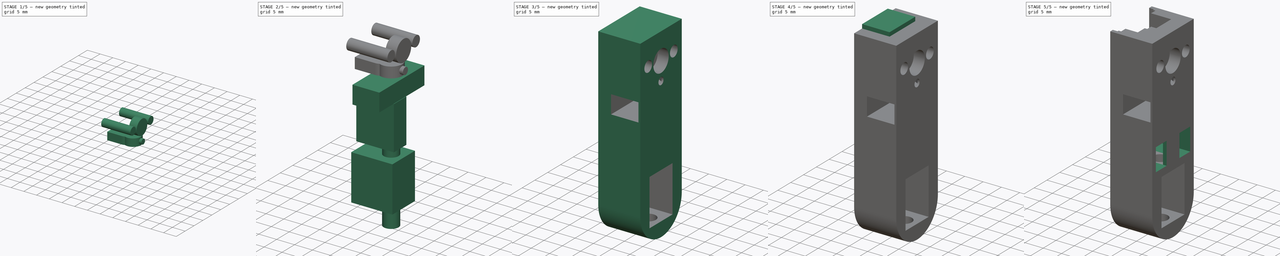
[diagram: build sequence overview — one tinted view per stage of 5, left to right]
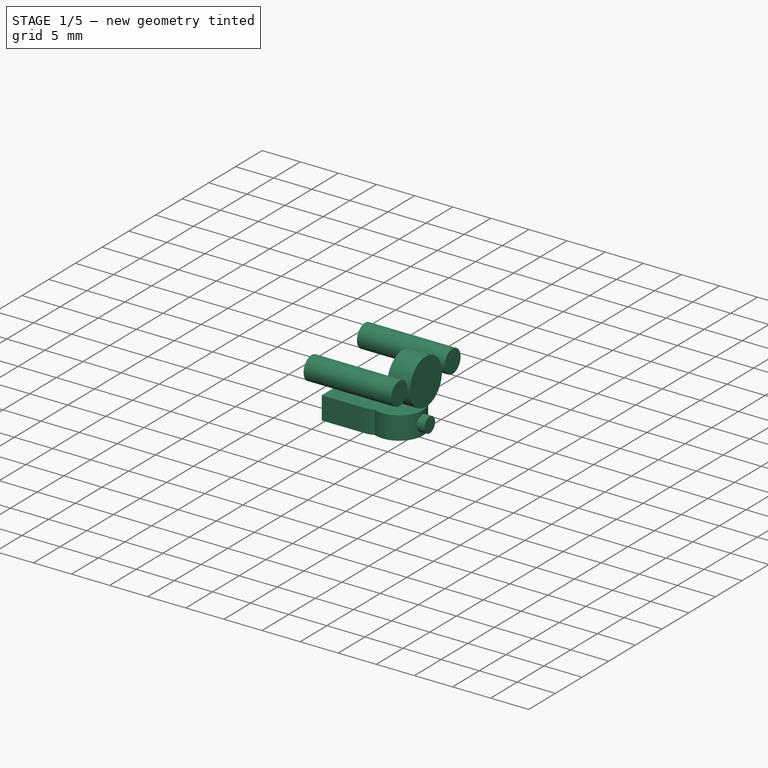
[diagram: stage 1 of 5 — iso view after this stage's code; geometry added in this stage tinted green]
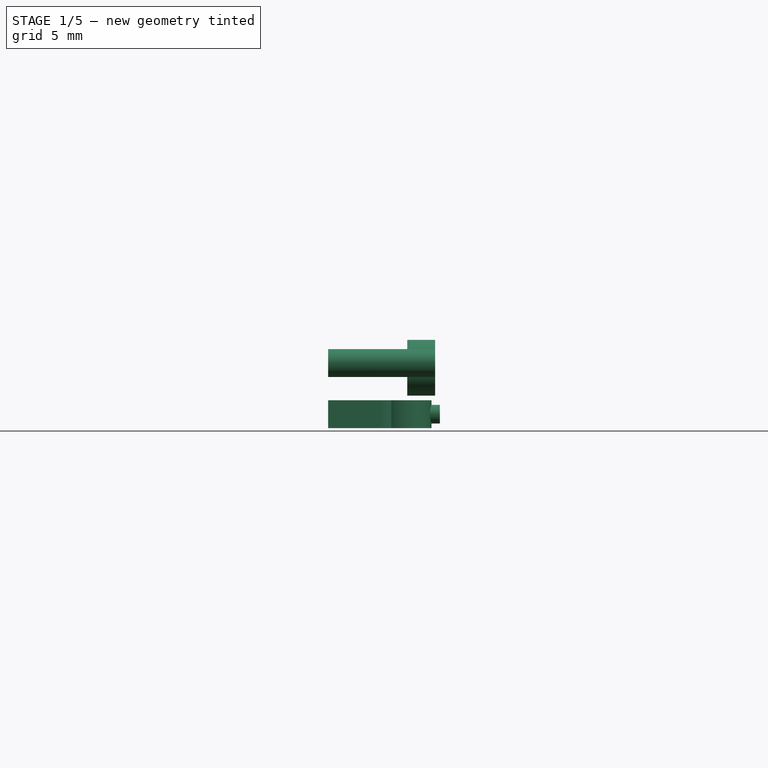
[diagram: stage 1 of 5 — front view after this stage's code; geometry added in this stage tinted green]
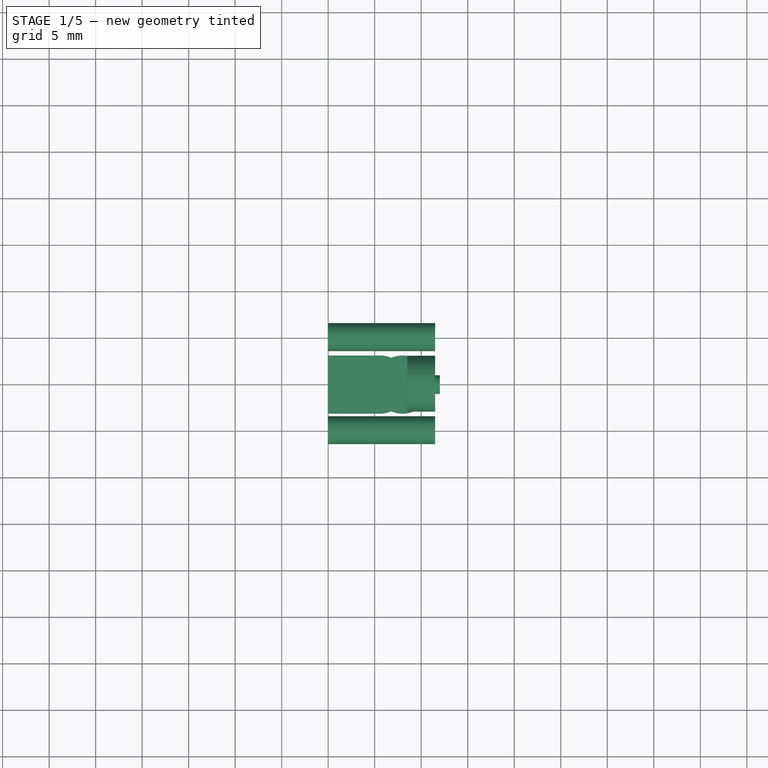
[diagram: stage 1 of 5 — top view after this stage's code; geometry added in this stage tinted green]
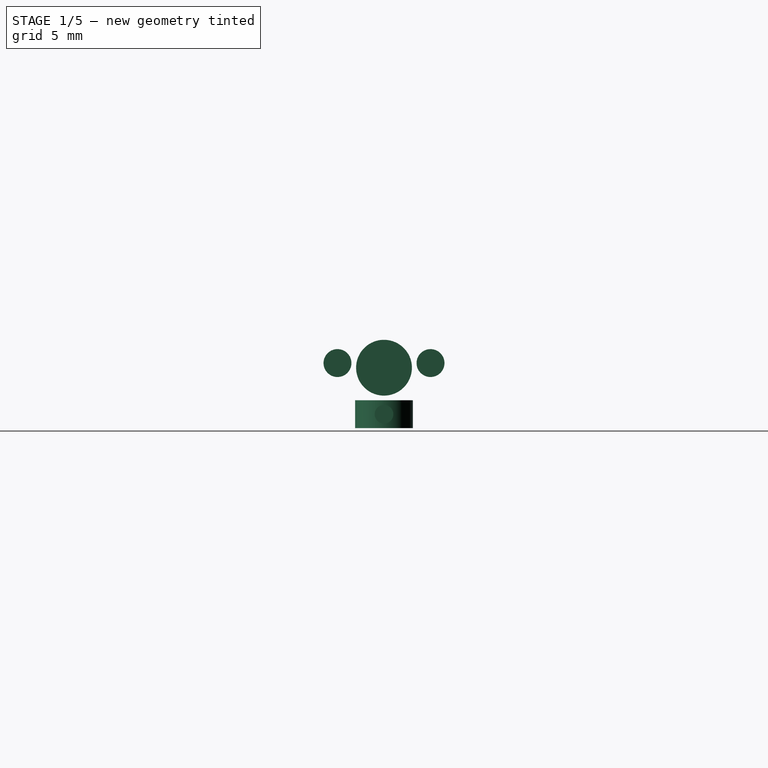
[diagram: stage 1 of 5 — right view after this stage's code; geometry added in this stage tinted green]
FCSTD DOCUMENT  (FreeCAD 0.18R15215 (Git))
Label: JackyTouch
License: All rights reserved
LicenseURL: http://en.wikipedia.org/wiki/All_rights_reserved
objects: Sketcher::SketchObject×15, Part::Extrusion×15, Part::MultiFuse×2, Part::Cut×2, Part::Mirroring×1
note: 35 computed .brp shape members not serialized (recipe doc carries the construction recipe); baked Part::Feature solids carry a one-line shape summary decoded from their .brp

FEATURE [Sketcher::SketchObject] Sketch013
  sketch-geometry (6):
    g0: ArcOfCircle CenterX=8 CenterY=0 CenterZ=0 NormalX=0 NormalY=0 NormalZ=1 AngleXU=0 Radius=3.1 StartAngle=4.30803 EndAngle=8.25834
    g1: ArcOfCircle CenterX=5.56074 CenterY=0 CenterZ=0 NormalX=0 NormalY=0 NormalZ=1 AngleXU=0 Radius=3.1 StartAngle=1.16644 EndAngle=1.5708
    g2: ArcOfCircle CenterX=5.56074 CenterY=0 CenterZ=0 NormalX=0 NormalY=0 NormalZ=1 AngleXU=0 Radius=3.1 StartAngle=4.71239 EndAngle=5.11675
    g3: LineSegment StartX=5.56074 StartY=3.1 StartZ=0 EndX=0 EndY=3.1 EndZ=0
    g4: LineSegment StartX=5.56074 StartY=-3.1 StartZ=0 EndX=0 EndY=-3.1 EndZ=0
    g5: LineSegment StartX=0 StartY=-3.1 StartZ=0 EndX=0 EndY=3.1 EndZ=0
  constraints (17):
    c: PointOnObject(g0,g-1)
    c: DistanceX(g-1,g0) = 8
    c: Radius(g0) = 3.1
    c: PointOnObject(g1,g-1)
    c: Coincident(g1,g0)
    c: Coincident(g2,g1)
    c: Coincident(g2,g0)
    c: Radius(g1) = 3.1
    c: Horizontal(g3)
    c: Horizontal(g4)
    c: Coincident(g5,g4)
    c: Coincident(g5,g3)
    c: Tangent(g4,g2) = 1.5708
    c: Tangent(g3,g1) = -1.5708
    c: Symmetric(g4,g3,g-1)
    c: DistanceX(g-1,g4) = 0
    c: DistanceY(g0,g0) = 5.7
FEATURE [Part::Extrusion] Extrude015  label="LogementAimantRappel"
  Base = -> Sketch013
  Dir = (0,0,1)
  DirMode = 2
  FaceMakerClass = Part::FaceMakerBullseye
  LengthFwd = 3
  LengthRev = 0
  Placement = pos=(0,0,18.5) rot=(0,0,1;0rad)
  Solid = true
  Symmetric = false
FEATURE [Sketcher::SketchObject] Sketch014
  Placement = pos=(0,0,0) rot=(0.57735,0.57735,0.57735;2.0944rad)
  sketch-geometry (1):
    g0: Circle CenterX=0 CenterY=0 CenterZ=0 NormalX=0 NormalY=0 NormalZ=1 AngleXU=0 Radius=1
  constraints (2):
    c: Coincident(g0,g-1)
    c: Radius(g0) = 1
FEATURE [Part::Extrusion] Extrude016  label="ExtractAimant"
  Base = -> Sketch014
  Dir = (1,0,0)
  DirMode = 2
  FaceMakerClass = Part::FaceMakerBullseye
  LengthFwd = 12
  LengthRev = 0
  Placement = pos=(0,0,20) rot=(0,0,1;0rad)
  Solid = true
  Symmetric = false
FEATURE [Sketcher::SketchObject] Sketch015
  Placement = pos=(0,0,0) rot=(0.57735,0.57735,0.57735;2.0944rad)
  sketch-geometry (2):
    g0: Circle CenterX=-5 CenterY=25.5 CenterZ=0 NormalX=0 NormalY=0 NormalZ=1 AngleXU=0 Radius=1.5
    g1: Circle CenterX=5 CenterY=25.5 CenterZ=0 NormalX=0 NormalY=0 NormalZ=1 AngleXU=0 Radius=1.5
  constraints (5):
    c: Symmetric(g0,g1,g-2)
    c: DistanceY(g-1,g1) = 25.5
    c: DistanceX(g0,g1) = 10
    c: Radius(g1) = 1.5
    c: Equal(g1,g0)
FEATURE [Part::Extrusion] Extrude017  label="DégagementLeds"
  Base = -> Sketch015
  Dir = (1,0,0)
  DirMode = 2
  FaceMakerClass = Part::FaceMakerBullseye
  LengthFwd = 11.5
  LengthRev = 0
  Solid = true
  Symmetric = false
FEATURE [Sketcher::SketchObject] Sketch016
  ExternalGeometry = -> [Sketch001]
  Placement = pos=(0,0,0) rot=(0.57735,0.57735,0.57735;2.0944rad)
  sketch-geometry (1):
    g0: Circle CenterX=0 CenterY=25 CenterZ=0 NormalX=0 NormalY=0 NormalZ=1 AngleXU=0 Radius=3
  constraints (2):
    c: Radius(g0) = 3
    c: Coincident(g0,g-3)
FEATURE [Part::Extrusion] Extrude018  label="TêteVis"
  Base = -> Sketch016
  Dir = (1,0,0)
  DirMode = 2
  FaceMakerClass = Part::FaceMakerBullseye
  LengthFwd = 3
  LengthRev = 0
  Placement = pos=(8.5,0,0) rot=(0,0,1;0rad)
  Solid = true
  Symmetric = false
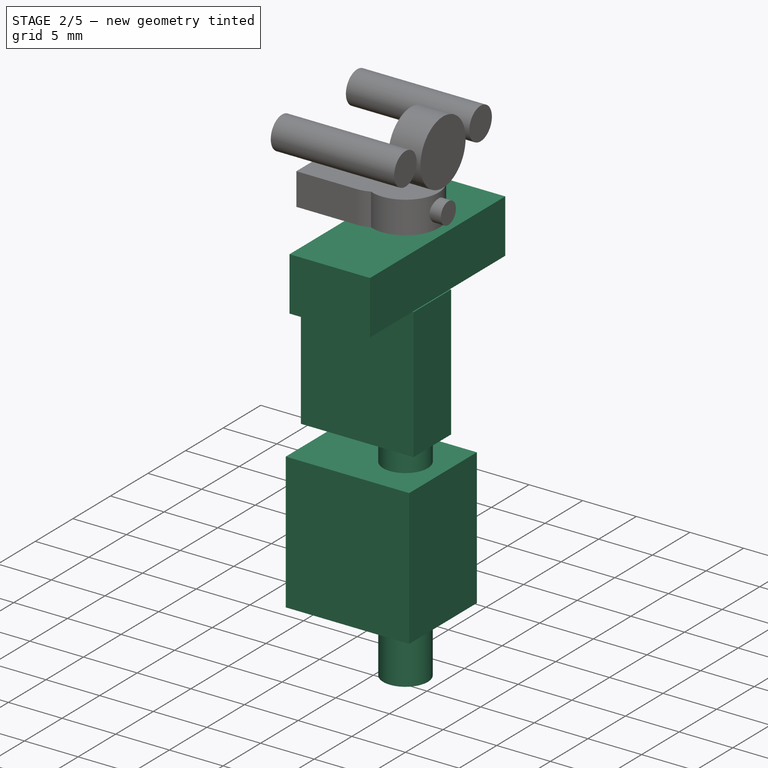
[diagram: stage 2 of 5 — iso view after this stage's code; geometry added in this stage tinted green]
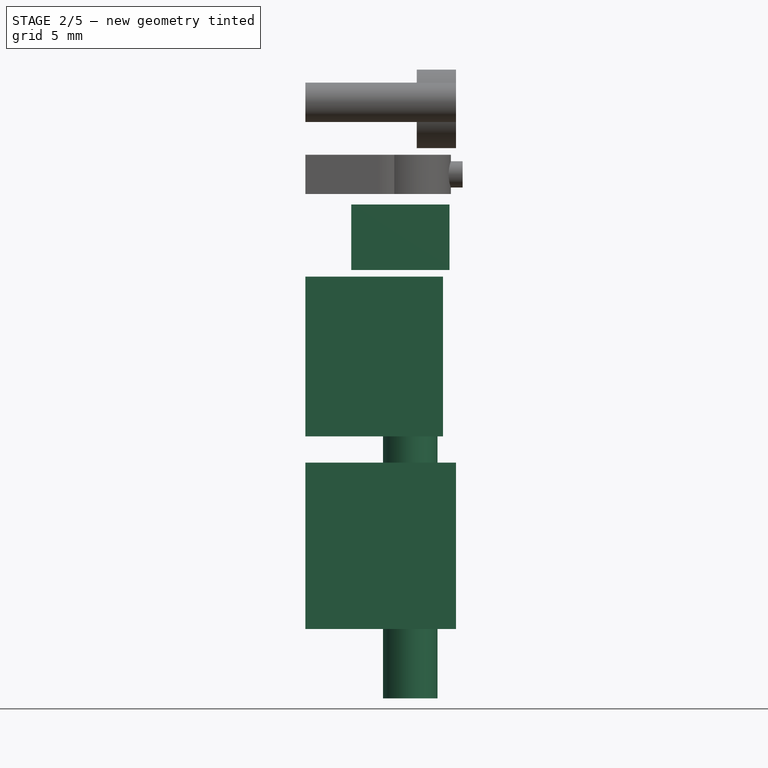
[diagram: stage 2 of 5 — front view after this stage's code; geometry added in this stage tinted green]
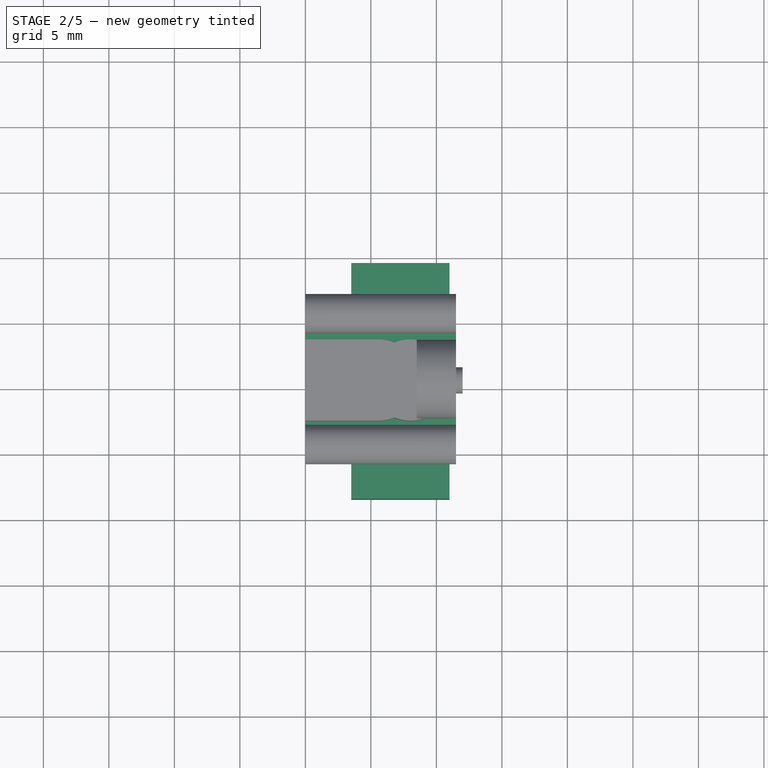
[diagram: stage 2 of 5 — top view after this stage's code; geometry added in this stage tinted green]
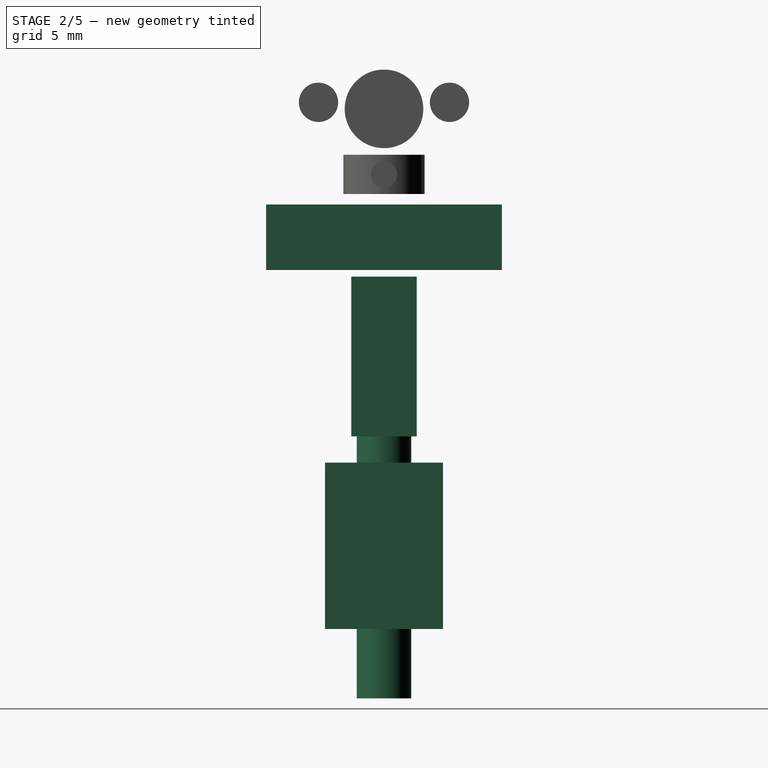
[diagram: stage 2 of 5 — right view after this stage's code; geometry added in this stage tinted green]
FEATURE [Part::Extrusion] Extrude011  label="DégagementAxe"
  Base = -> Sketch002
  Dir = (1,0,0)
  DirMode = 2
  FaceMakerClass = Part::FaceMakerBullseye
  LengthFwd = 10.5
  LengthRev = 0
  Solid = true
  Symmetric = false
FEATURE [Sketcher::SketchObject] Sketch011
  sketch-geometry (1):
    g0: Circle CenterX=8 CenterY=0 CenterZ=0 NormalX=0 NormalY=0 NormalZ=1 AngleXU=0 Radius=2.08
  constraints (3):
    c: PointOnObject(g0,g-1)
    c: Radius(g0) = 2.08
    c: DistanceX(g-1,g0) = 8
FEATURE [Part::Extrusion] Extrude012  label="PercageAxe"
  Base = -> Sketch011
  Dir = (0,0,1)
  DirMode = 2
  FaceMakerClass = Part::FaceMakerBullseye
  LengthFwd = 20
  LengthRev = 0
  Reversed = true
  Solid = true
  Symmetric = false
FEATURE [Part::Extrusion] Extrude013  label="DégagementGachette"
  Base = -> Sketch009
  Dir = (1,0,0)
  DirMode = 2
  FaceMakerClass = Part::FaceMakerBullseye
  LengthFwd = 7.5
  LengthRev = 0
  Placement = pos=(3.5,0,0) rot=(0,0,1;0rad)
  Solid = true
  Symmetric = false
FEATURE [Sketcher::SketchObject] Sketch012
  ExternalGeometry = -> [Sketch002]
  Placement = pos=(0,0,0) rot=(0.57735,0.57735,0.57735;2.0944rad)
  sketch-geometry (9):
    g0: LineSegment [constr] StartX=-5 StartY=-1 StartZ=0 EndX=5 EndY=-1 EndZ=0
    g1: LineSegment [constr] StartX=-2.5 StartY=-12.2 StartZ=0 EndX=2.5 EndY=-12.2 EndZ=0
    g2: LineSegment [constr] StartX=-2.5 StartY=-2 StartZ=0 EndX=2.5 EndY=-2 EndZ=0
    g3: LineSegment [constr] StartX=-2.5 StartY=-2 StartZ=0 EndX=-2.5 EndY=-12.2 EndZ=0
    g4: LineSegment [constr] StartX=2.5 StartY=-2 StartZ=0 EndX=2.5 EndY=-12.2 EndZ=0
    g5: LineSegment StartX=-4.5 StartY=-14.7 StartZ=0 EndX=4.5 EndY=-14.7 EndZ=0
    g6: LineSegment StartX=4.5 StartY=-14.7 StartZ=0 EndX=4.5 EndY=-2 EndZ=0
    g7: LineSegment StartX=4.5 StartY=-2 StartZ=0 EndX=-4.5 EndY=-2 EndZ=0
    g8: LineSegment StartX=-4.5 StartY=-2 StartZ=0 EndX=-4.5 EndY=-14.7 EndZ=0
  constraints (24):
    c: DistanceY(g0,g-1) = 1
    c: Symmetric(g0,g0,g-2)
    c: DistanceX(g0,g0) = 10
    c: Horizontal(g1)
    c: Symmetric(g-3,g1,g-1)
    c: Horizontal(g2)
    c: Symmetric(g-4,g2,g0)
    c: Coincident(g3,g2)
    c: Coincident(g3,g1)
    c: Coincident(g4,g2)
    c: Coincident(g4,g1)
    c: Vertical(g4)
    c: Vertical(g3)
    c: Coincident(g5,g6)
    c: Coincident(g6,g7)
    c: Coincident(g7,g8)
    c: Coincident(g8,g5)
    c: Horizontal(g5)
    c: Vertical(g6)
    c: Vertical(g8)
    c: PointOnObject(g2,g7)
    c: DistanceY(g5,g1) = 2.5
    c: Symmetric(g6,g7,g-2)
    c: DistanceX(g1,g5) = 2
FEATURE [Part::Extrusion] Extrude014  label="DégagementCirclip"
  Base = -> Sketch012
  Dir = (1,0,0)
  DirMode = 2
  FaceMakerClass = Part::FaceMakerBullseye
  LengthFwd = 11.5
  LengthRev = 0
  Solid = true
  Symmetric = false
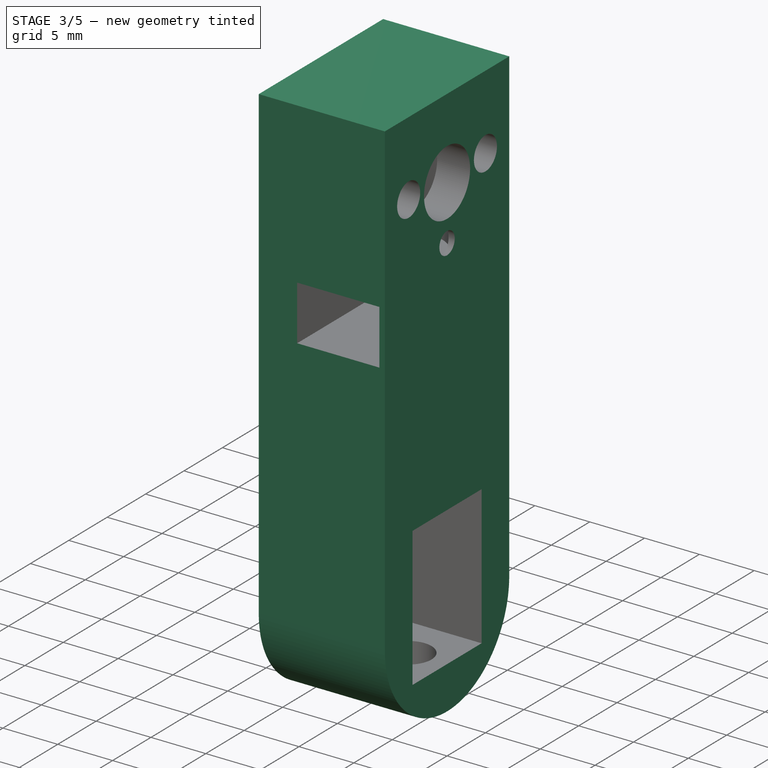
[diagram: stage 3 of 5 — iso view after this stage's code; geometry added in this stage tinted green]
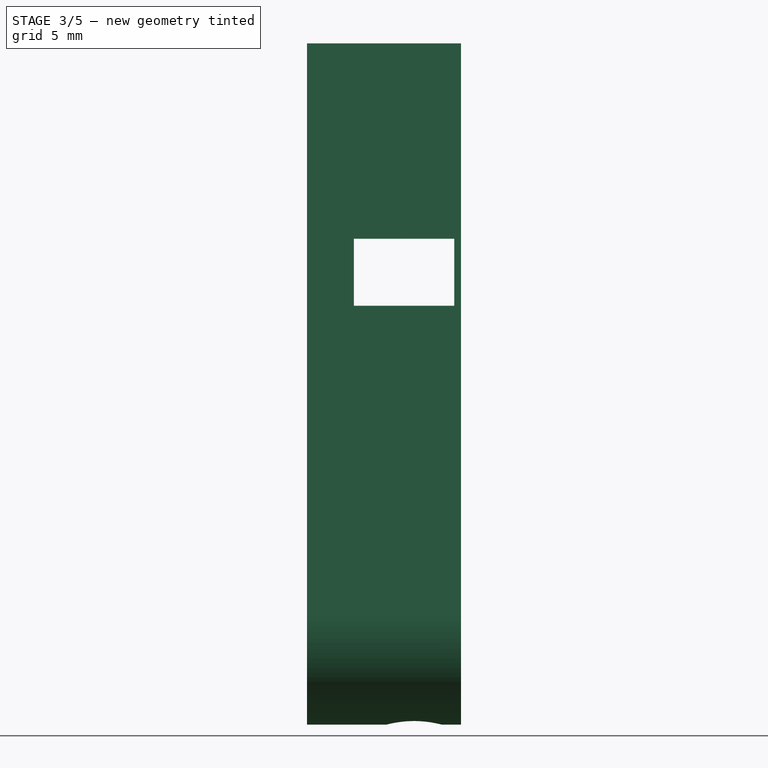
[diagram: stage 3 of 5 — front view after this stage's code; geometry added in this stage tinted green]
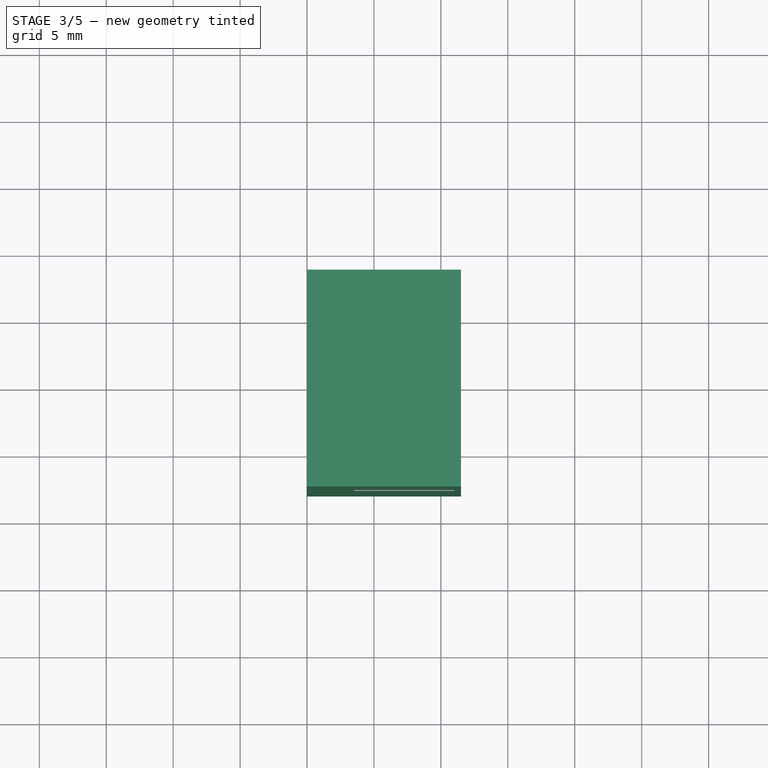
[diagram: stage 3 of 5 — top view after this stage's code; geometry added in this stage tinted green]
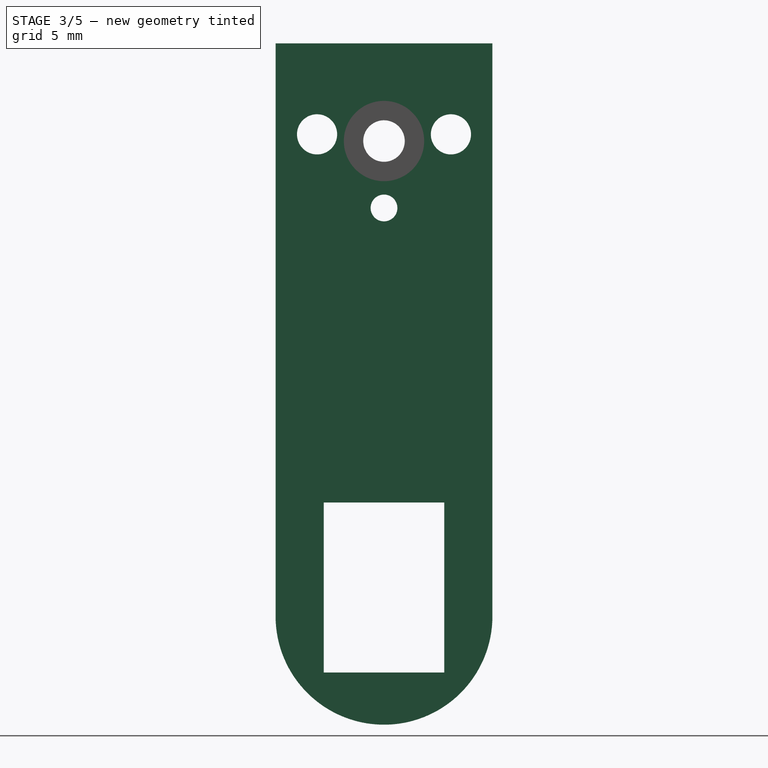
[diagram: stage 3 of 5 — right view after this stage's code; geometry added in this stage tinted green]
FEATURE [Sketcher::SketchObject] Sketch006
  ExternalGeometry = -> [Sketch001,Sketch]
  Placement = pos=(0,0,0) rot=(0.57735,0.57735,0.57735;2.0944rad)
  sketch-geometry (5):
    g0: LineSegment StartX=-8.1 StartY=32.3 StartZ=0 EndX=8.1 EndY=32.3 EndZ=0
    g1: ArcOfCircle CenterX=0 CenterY=-10.5 CenterZ=0 NormalX=0 NormalY=0 NormalZ=1 AngleXU=0 Radius=8.1 StartAngle=3.14159 EndAngle=6.28319
    g2: LineSegment [constr] StartX=20 StartY=0 StartZ=0 EndX=20 EndY=-12.2 EndZ=0
    g3: LineSegment StartX=8.1 StartY=-10.5 StartZ=0 EndX=8.1 EndY=32.3 EndZ=0
    g4: LineSegment StartX=-8.1 StartY=32.3 StartZ=0 EndX=-8.1 EndY=-10.5 EndZ=0
  constraints (15):
    c: DistanceX(g-3,g0) = 1
    c: Horizontal(g0)
    c: PointOnObject(g-3,g0)
    c: PointOnObject(g1,g-2)
    c: PointOnObject(g2,g-1)
    c: Vertical(g2)
    c: DistanceY(g2,g2) = 12.2
    c: DistanceX(g2) = 20
    c: Coincident(g3,g0)
    c: Vertical(g3)
    c: DistanceY(g1,g-1) = 10.5
    c: Tangent(g3,g1) = -1.5708
    c: Coincident(g4,g0)
    c: Vertical(g4)
    c: Tangent(g4,g1) = -1.5708
FEATURE [Part::Extrusion] Extrude006  label="Body"
  Base = -> Sketch006
  Dir = (1,0,0)
  DirMode = 2
  FaceMakerClass = Part::FaceMakerBullseye
  LengthFwd = 11.5
  LengthRev = 0
  Solid = true
  Symmetric = false
FEATURE [Sketcher::SketchObject] Sketch009
  ExternalGeometry = -> [Sketch002]
  Placement = pos=(0,0,0) rot=(0.57735,0.57735,0.57735;2.0944rad)
  sketch-geometry (8):
    g0: LineSegment [constr] StartX=-3 StartY=15.7 StartZ=0 EndX=3 EndY=15.7 EndZ=0
    g1: LineSegment [constr] StartX=3 StartY=15.7 StartZ=0 EndX=3 EndY=12.7 EndZ=0
    g2: LineSegment [constr] StartX=3 StartY=12.7 StartZ=0 EndX=-3 EndY=12.7 EndZ=0
    g3: LineSegment [constr] StartX=-3 StartY=12.7 StartZ=0 EndX=-3 EndY=15.7 EndZ=0
    g4: LineSegment StartX=-9 StartY=17.7 StartZ=0 EndX=9 EndY=17.7 EndZ=0
    g5: LineSegment StartX=9 StartY=17.7 StartZ=0 EndX=9 EndY=12.7 EndZ=0
    g6: LineSegment StartX=9 StartY=12.7 StartZ=0 EndX=-9 EndY=12.7 EndZ=0
    g7: LineSegment StartX=-9 StartY=12.7 StartZ=0 EndX=-9 EndY=17.7 EndZ=0
  constraints (22):
    c: DistanceX(g2,g2) = 6
    c: DistanceY(g3,g3) = 3
    c: Coincident(g4,g5)
    c: Coincident(g5,g6)
    c: Coincident(g6,g7)
    c: Coincident(g7,g4)
    c: Horizontal(g6)
    c: Vertical(g5)
    c: Vertical(g7)
    c: Symmetric(g4,g4,g-2)
    c: DistanceX(g4,g4) = 18
    c: DistanceY(g-3,g5) = 0.5
    c: Coincident(g2,g1)
    c: Coincident(g3,g2)
    c: Horizontal(g0)
    c: Vertical(g1)
    c: Vertical(g3)
    c: Coincident(g3,g0)
    c: Coincident(g1,g0)
    c: Symmetric(g1,g2,g-2)
    c: DistanceY(g5,g1) = 0
    c: DistanceY(g0,g4) = 2
FEATURE [Sketcher::SketchObject] Sketch010
  ExternalGeometry = -> [Sketch001]
  Placement = pos=(0,0,0) rot=(0.57735,0.57735,0.57735;2.0944rad)
  sketch-geometry (1):
    g0: Circle CenterX=0 CenterY=25 CenterZ=0 NormalX=0 NormalY=0 NormalZ=1 AngleXU=0 Radius=1.55
  constraints (2):
    c: Coincident(g0,g-3)
    c: Radius(g0) = 1.55
FEATURE [Part::Extrusion] Extrude010  label="AxeFixation"
  Base = -> Sketch010
  Dir = (1,0,0)
  DirMode = 2
  FaceMakerClass = Part::FaceMakerBullseye
  LengthFwd = 12
  LengthRev = 0
  Solid = true
  Symmetric = false
FEATURE [Part::MultiFuse] Fusion002
  Shapes = -> [Extrude010,Extrude013,Extrude014,Extrude012,Extrude011,Extrude015,Extrude016,Extrude017,Extrude018]
FEATURE [Part::Cut] Cut
  Base = -> Extrude006
  Tool = -> Fusion002
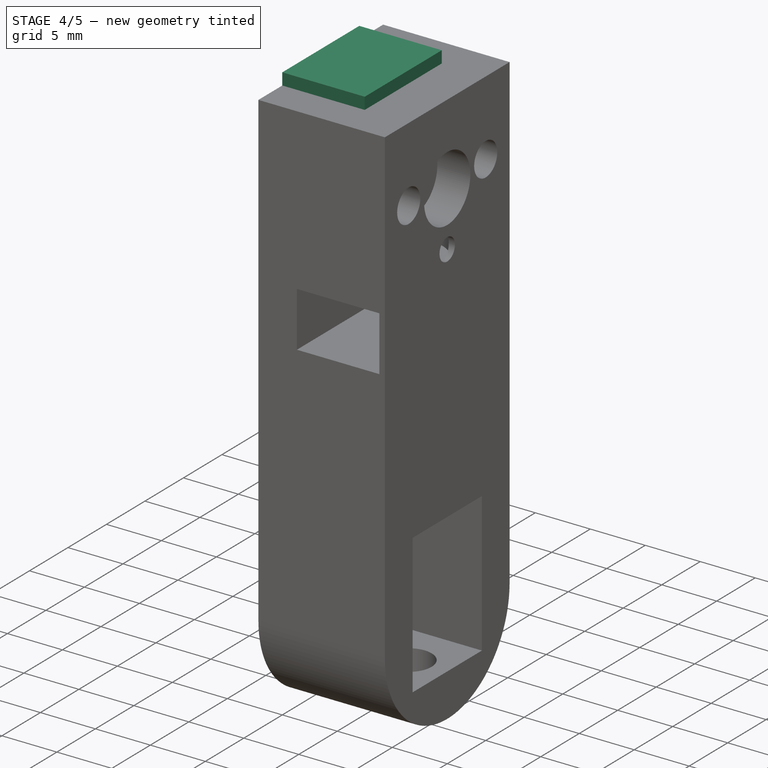
[diagram: stage 4 of 5 — iso view after this stage's code; geometry added in this stage tinted green]
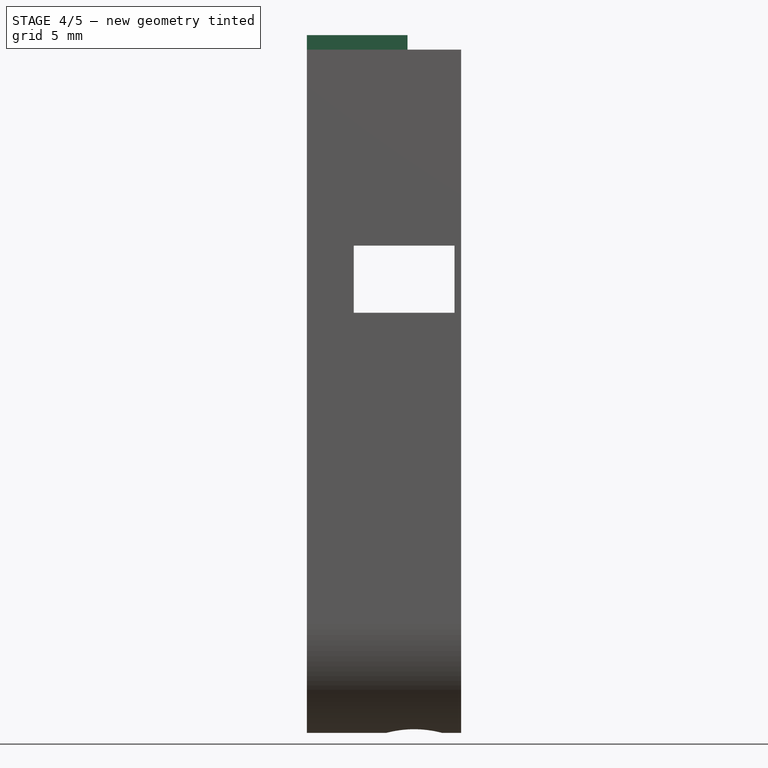
[diagram: stage 4 of 5 — front view after this stage's code; geometry added in this stage tinted green]
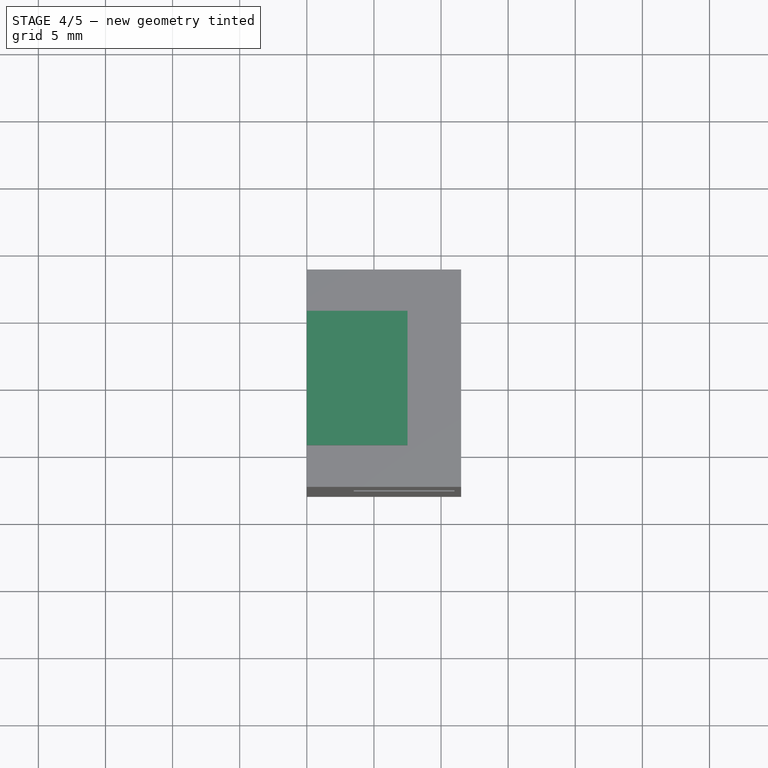
[diagram: stage 4 of 5 — top view after this stage's code; geometry added in this stage tinted green]
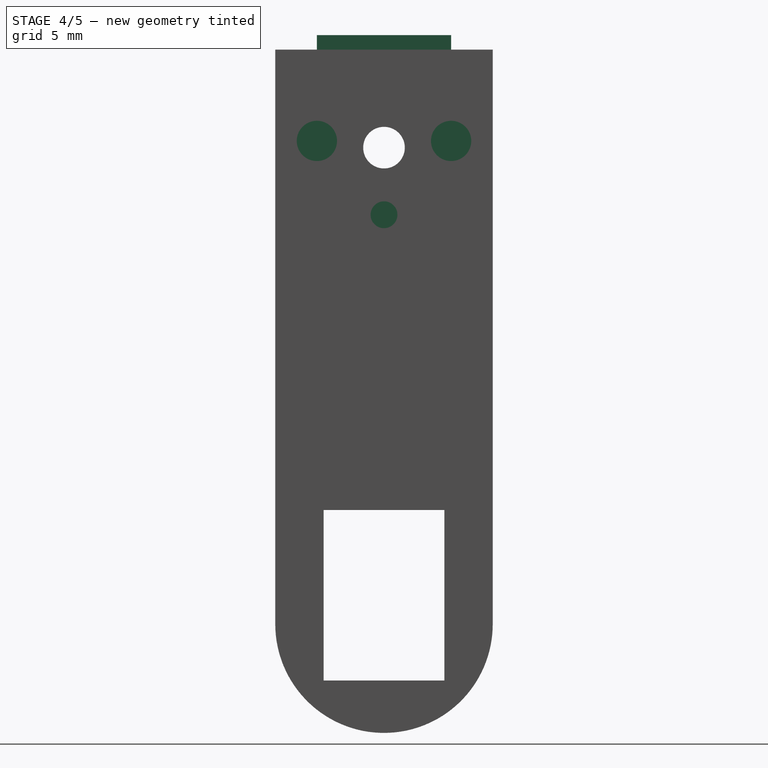
[diagram: stage 4 of 5 — right view after this stage's code; geometry added in this stage tinted green]
FEATURE [Sketcher::SketchObject] Sketch001
  Placement = pos=(0,0,0) rot=(0.57735,0.57735,0.57735;2.0944rad)
  sketch-geometry (5):
    g0: Circle CenterX=0 CenterY=25 CenterZ=0 NormalX=0 NormalY=0 NormalZ=1 AngleXU=0 Radius=1.55
    g1: LineSegment StartX=-7.1 StartY=0 StartZ=0 EndX=7.1 EndY=0 EndZ=0
    g2: LineSegment StartX=7.1 StartY=0 StartZ=0 EndX=7.1 EndY=32.3 EndZ=0
    g3: LineSegment StartX=7.1 StartY=32.3 StartZ=0 EndX=-7.1 EndY=32.3 EndZ=0
    g4: LineSegment StartX=-7.1 StartY=32.3 StartZ=0 EndX=-7.1 EndY=0 EndZ=0
  constraints (14):
    c: PointOnObject(g0,g-2)
    c: DistanceY(g-1,g0) = 25
    c: Radius(g0) = 1.55
    c: Coincident(g1,g2)
    c: Coincident(g2,g3)
    c: Coincident(g3,g4)
    c: Coincident(g4,g1)
    c: Horizontal(g3)
    c: Vertical(g2)
    c: Vertical(g4)
    c: Symmetric(g1,g1,g-2)
    c: PointOnObject(g1,g-1)
    c: DistanceX(g1,g1) = 14.2
    c: DistanceY(g1,g2) = 32.3
FEATURE [Part::Extrusion] Extrude001
  Base = -> Sketch001
  Dir = (1,0,0)
  DirMode = 2
  FaceMakerClass = Part::FaceMakerBullseye
  LengthFwd = 1.3
  LengthRev = 0
  Solid = true
  Symmetric = false
FEATURE [Sketcher::SketchObject] Sketch002
  ExternalGeometry = -> [Sketch]
  Placement = pos=(0,0,0) rot=(0.57735,0.57735,0.57735;2.0944rad)
  sketch-geometry (4):
    g0: LineSegment StartX=2.5 StartY=12.2 StartZ=0 EndX=-2.5 EndY=12.2 EndZ=0
    g1: LineSegment StartX=-2.5 StartY=12.2 StartZ=0 EndX=-2.5 EndY=0 EndZ=0
    g2: LineSegment StartX=-2.5 StartY=0 StartZ=0 EndX=2.5 EndY=0 EndZ=0
    g3: LineSegment StartX=2.5 StartY=0 StartZ=0 EndX=2.5 EndY=12.2 EndZ=0
  constraints (11):
    c: Coincident(g0,g1)
    c: Coincident(g1,g2)
    c: Coincident(g2,g3)
    c: Horizontal(g0)
    c: Vertical(g1)
    c: Vertical(g3)
    c: PointOnObject(g1,g-1)
    c: Symmetric(g2,g1,g-2)
    c: Coincident(g3,g0)
    c: PointOnObject(g-3,g3)
    c: DistanceY(g-3,g0) = 6
FEATURE [Sketcher::SketchObject] Sketch003
  ExternalGeometry = -> [Sketch001]
  Placement = pos=(0,0,0) rot=(0.57735,0.57735,0.57735;2.0944rad)
  sketch-geometry (4):
    g0: LineSegment StartX=-5 StartY=33.3821 StartZ=0 EndX=5 EndY=33.3821 EndZ=0
    g1: LineSegment StartX=5 StartY=33.3821 StartZ=0 EndX=5 EndY=29 EndZ=0
    g2: LineSegment StartX=5 StartY=29 StartZ=0 EndX=-5 EndY=29 EndZ=0
    g3: LineSegment StartX=-5 StartY=29 StartZ=0 EndX=-5 EndY=33.3821 EndZ=0
  constraints (10):
    c: Coincident(g0,g1)
    c: Coincident(g1,g2)
    c: Coincident(g2,g3)
    c: Coincident(g3,g0)
    c: Horizontal(g0)
    c: Vertical(g1)
    c: Vertical(g3)
    c: DistanceX(g0,g0) = 10
    c: Symmetric(g1,g2,g-2)
    c: DistanceY(g-1,g1) = 29
FEATURE [Part::Extrusion] Extrude003
  Base = -> Sketch003
  Dir = (1,0,0)
  DirMode = 2
  FaceMakerClass = Part::FaceMakerBullseye
  LengthFwd = 7.5
  LengthRev = 0
  Solid = true
  Symmetric = false
FEATURE [Sketcher::SketchObject] Sketch004
  ExternalGeometry = -> [Sketch001]
  Placement = pos=(0,0,0) rot=(0.57735,0.57735,0.57735;2.0944rad)
  sketch-geometry (8):
    g0: LineSegment StartX=-3.5 StartY=29 StartZ=0 EndX=3.5 EndY=29 EndZ=0
    g1: LineSegment StartX=3.5 StartY=29 StartZ=0 EndX=3.5 EndY=23 EndZ=0
    g2: LineSegment StartX=3.5 StartY=23 StartZ=0 EndX=-3.5 EndY=23 EndZ=0
    g3: LineSegment StartX=-3.5 StartY=23 StartZ=0 EndX=-3.5 EndY=29 EndZ=0
    g4: LineSegment StartX=-6.7 StartY=32.3 StartZ=0 EndX=6.7 EndY=32.3 EndZ=0
    g5: LineSegment StartX=-6.7 StartY=0 StartZ=0 EndX=6.7 EndY=0 EndZ=0
    g6: LineSegment StartX=-6.7 StartY=32.3 StartZ=0 EndX=-6.7 EndY=0 EndZ=0
    g7: LineSegment StartX=6.7 StartY=32.3 StartZ=0 EndX=6.7 EndY=0 EndZ=0
  constraints (23):
    c: Coincident(g0,g1)
    c: Coincident(g1,g2)
    c: Coincident(g2,g3)
    c: Coincident(g3,g0)
    c: Horizontal(g0)
    c: Vertical(g1)
    c: Vertical(g3)
    c: Symmetric(g1,g2,g-2)
    c: DistanceX(g2,g1) = 7
    c: DistanceY(g-7,g0) = 4
    c: DistanceY(g1,g-7) = 2
    c: PointOnObject(g4,g-3)
    c: PointOnObject(g4,g-3)
    c: PointOnObject(g5,g-5)
    c: PointOnObject(g5,g-5)
    c: Coincident(g6,g4)
    c: Coincident(g6,g5)
    c: Vertical(g6)
    c: Coincident(g7,g4)
    c: Coincident(g7,g5)
    c: Vertical(g7)
    c: DistanceX(g5,g-5) = 0.4
    c: DistanceX(g-6,g5) = 0.4
FEATURE [Part::Extrusion] Extrude004
  Base = -> Sketch004
  Dir = (1,0,0)
  DirMode = 2
  FaceMakerClass = Part::FaceMakerBullseye
  LengthFwd = 2
  LengthRev = 0
  Solid = true
  Symmetric = false
FEATURE [Sketcher::SketchObject] Sketch005
  Placement = pos=(0,0,0) rot=(0.57735,0.57735,0.57735;2.0944rad)
  sketch-geometry (4):
    g0: LineSegment StartX=0.5 StartY=20 StartZ=0 EndX=6.5 EndY=20 EndZ=0
    g1: LineSegment StartX=6.5 StartY=20 StartZ=0 EndX=6.5 EndY=12 EndZ=0
    g2: LineSegment StartX=6.5 StartY=12 StartZ=0 EndX=0.5 EndY=12 EndZ=0
    g3: LineSegment StartX=0.5 StartY=12 StartZ=0 EndX=0.5 EndY=20 EndZ=0
  constraints (12):
    c: Coincident(g0,g1)
    c: Coincident(g1,g2)
    c: Coincident(g2,g3)
    c: Coincident(g3,g0)
    c: Horizontal(g0)
    c: Horizontal(g2)
    c: Vertical(g1)
    c: Vertical(g3)
    c: DistanceY(g-1,g2) = 12
    c: DistanceY(g2,g0) = 8
    c: DistanceX(g0,g0) = 6
    c: DistanceX(g-1,g2) = 0.5
FEATURE [Part::Extrusion] Extrude005
  Base = -> Sketch005
  Dir = (1,0,0)
  DirMode = 2
  FaceMakerClass = Part::FaceMakerBullseye
  LengthFwd = 3
  LengthRev = 0
  Solid = true
  Symmetric = false
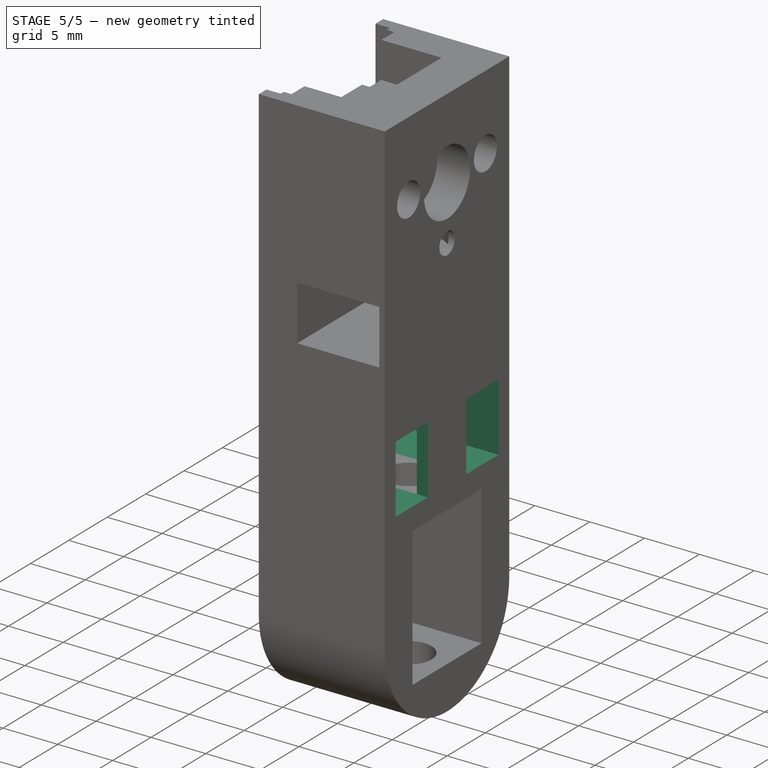
[diagram: stage 5 of 5 — iso view after this stage's code; geometry added in this stage tinted green]
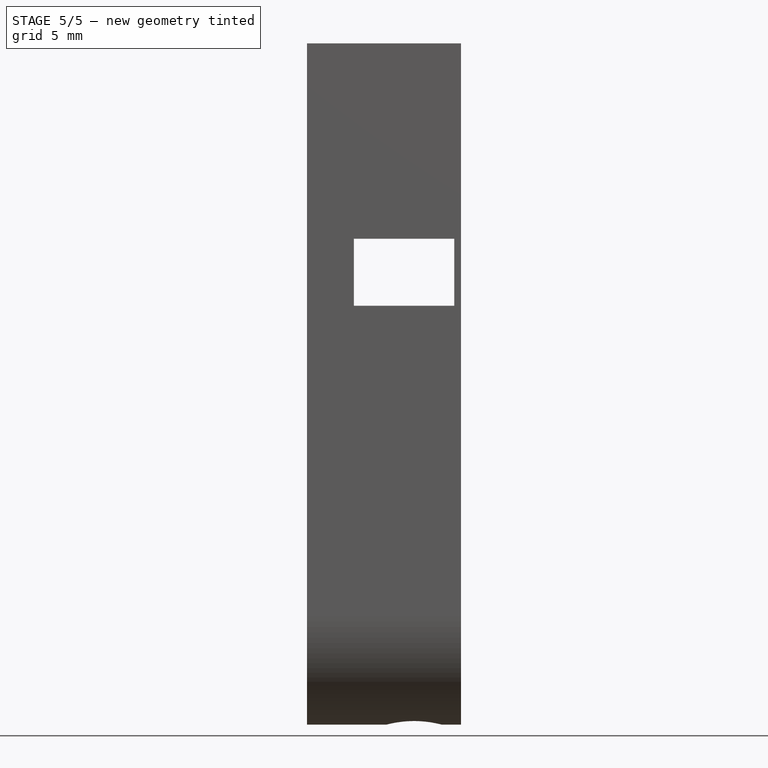
[diagram: stage 5 of 5 — front view after this stage's code; geometry added in this stage tinted green]
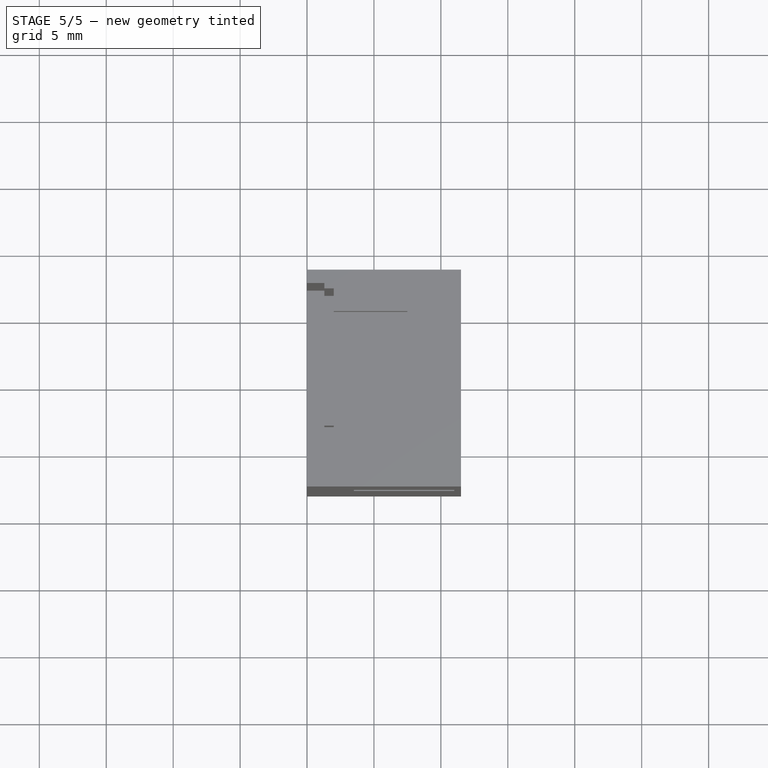
[diagram: stage 5 of 5 — top view after this stage's code; geometry added in this stage tinted green]
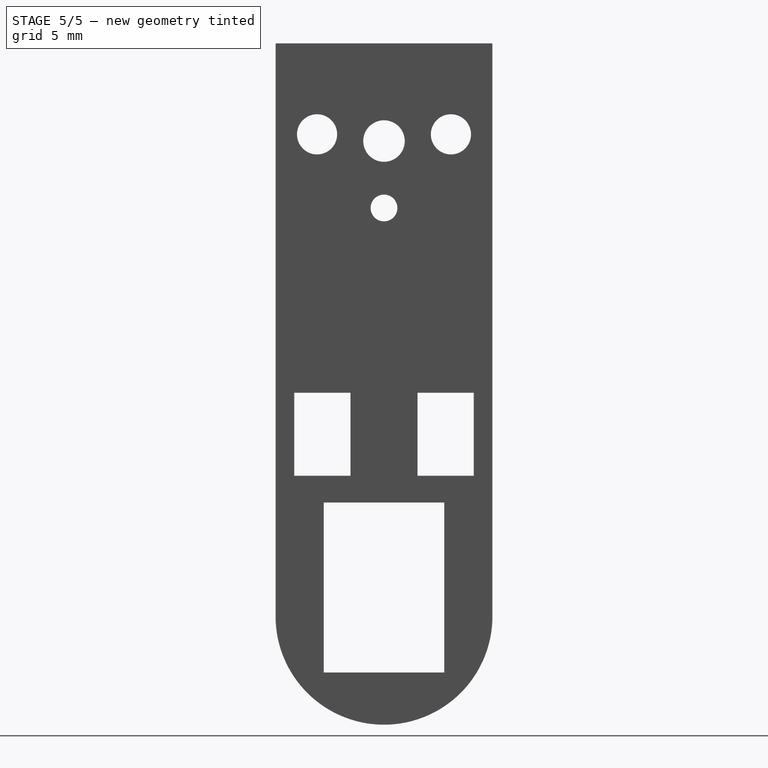
[diagram: stage 5 of 5 — right view after this stage's code; geometry added in this stage tinted green]
FEATURE [Sketcher::SketchObject] Sketch
  Placement = pos=(0,0,0) rot=(0.57735,0.57735,0.57735;2.0944rad)
  sketch-geometry (4):
    g0: LineSegment StartX=2.5 StartY=0 StartZ=0 EndX=6.7 EndY=0 EndZ=0
    g1: LineSegment StartX=6.7 StartY=0 StartZ=0 EndX=6.7 EndY=6.2 EndZ=0
    g2: LineSegment StartX=6.7 StartY=6.2 StartZ=0 EndX=2.5 EndY=6.2 EndZ=0
    g3: LineSegment StartX=2.5 StartY=6.2 StartZ=0 EndX=2.5 EndY=0 EndZ=0
  constraints (12):
    c: Coincident(g0,g1)
    c: Coincident(g1,g2)
    c: Coincident(g2,g3)
    c: Coincident(g3,g0)
    c: Horizontal(g0)
    c: Horizontal(g2)
    c: Vertical(g1)
    c: Vertical(g3)
    c: PointOnObject(g0,g-1)
    c: DistanceX(g2,g2) = 4.2
    c: DistanceY(g1,g1) = 6.2
    c: DistanceX(g-1,g0) = 2.5
FEATURE [Part::Extrusion] Extrude
  Base = -> Sketch
  Dir = (1,0,0)
  DirMode = 2
  FaceMakerClass = Part::FaceMakerBullseye
  LengthFwd = 11.5
  LengthRev = 0
  Solid = true
  Symmetric = false
FEATURE [Part::Mirroring] Part__Mirroring  label="Extrude (Mirror #1)"
  Base = (0,0,0)
  Normal = (0,1,0)
  Source = -> Extrude
FEATURE [Part::MultiFuse] Fusion  label="Board"
  Shapes = -> [Part__Mirroring,Extrude,Extrude001,Extrude003,Extrude004,Extrude005]
FEATURE [Part::Cut] Cut001
  Base = -> Cut
  Tool = -> Fusion
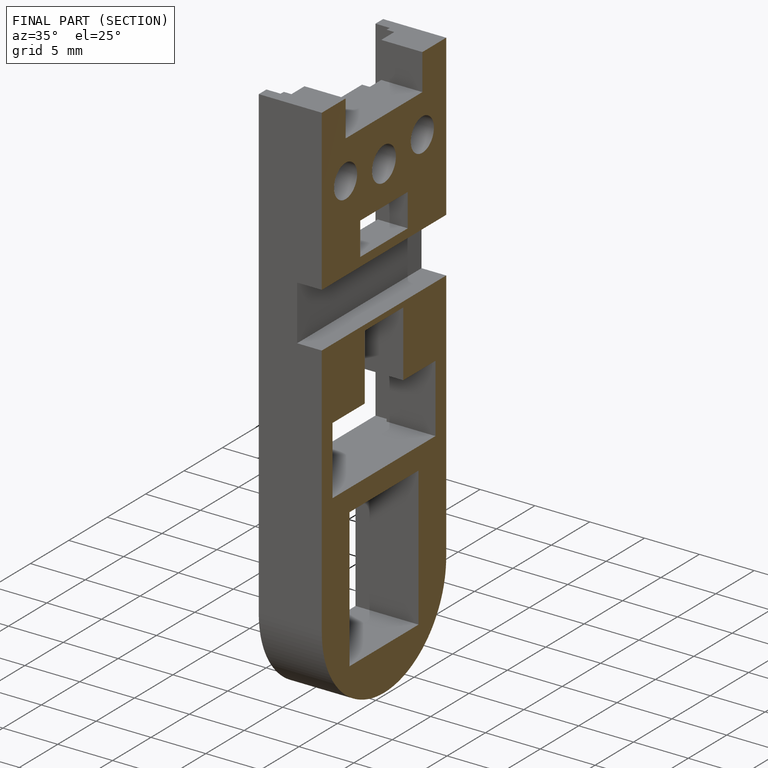
[diagram: finished part — half-section view (interior)]
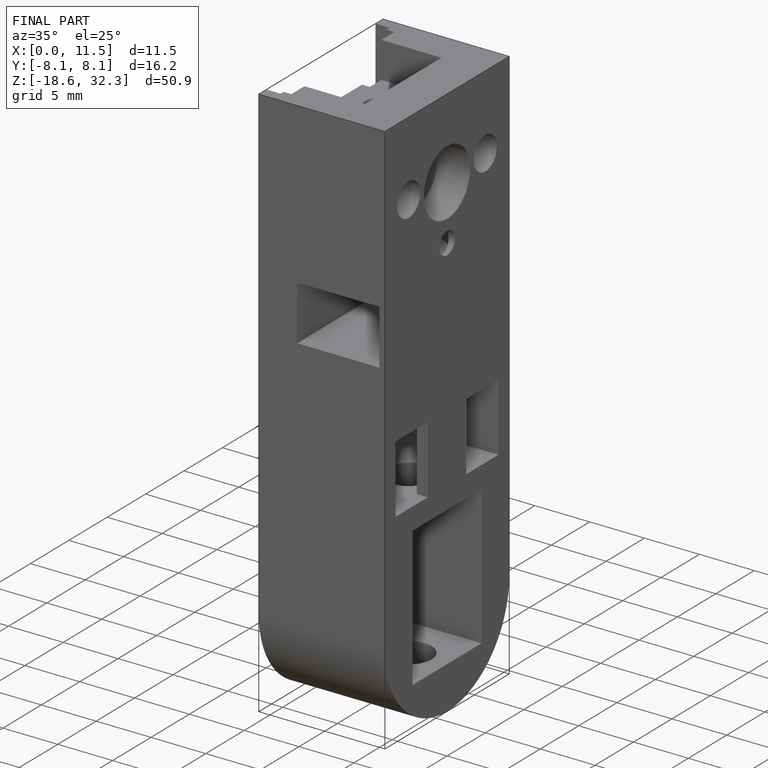
[diagram: finished part — iso view with bounding-box wireframe]
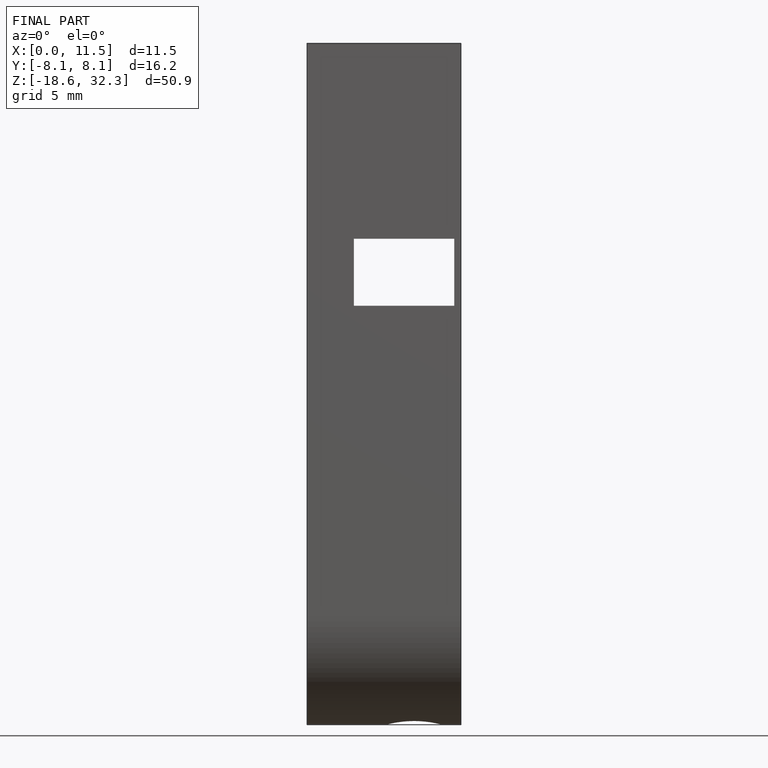
[diagram: finished part — front view with bounding-box wireframe]
